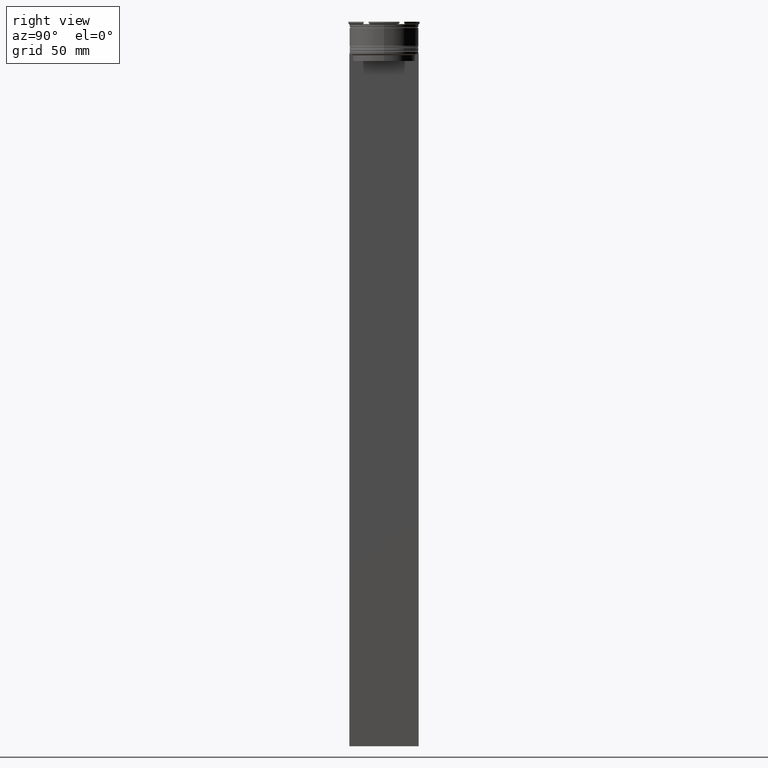
[diagram: clean part render]
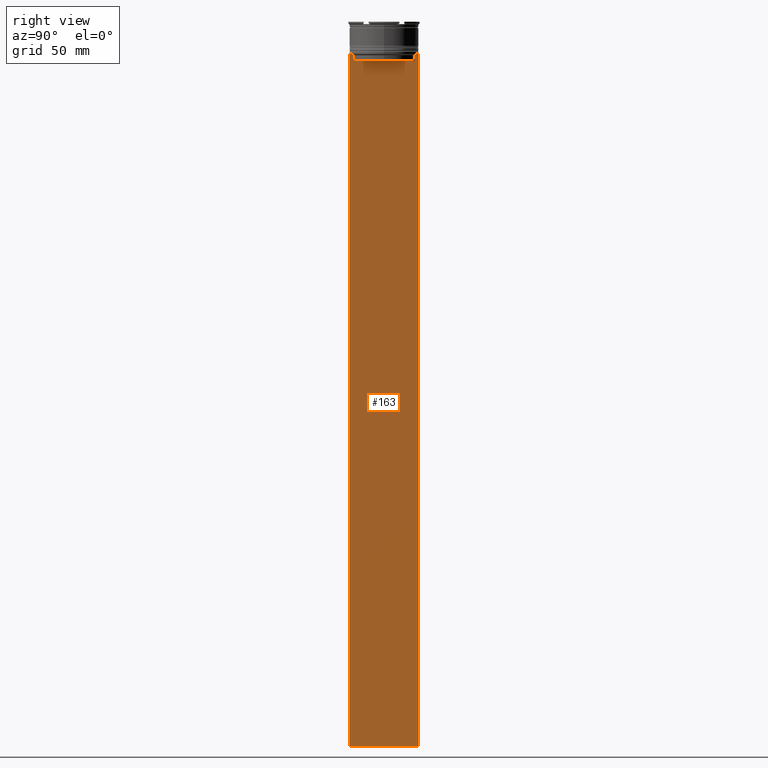
[diagram: same view with one face highlighted and labeled with its STEP entity id]
A machine part, right view. The second image highlights one B-rep face of the part: STEP entity #163.
In plain terms, the highlighted planar face has unit normal (-1, 0, 0).
Its self-contained STEP definition (entity closure, byte-faithful):
#25 = VECTOR ( 'NONE', #2640, 1000.000000000000000 ) ;
#26 = B_SPLINE_CURVE_WITH_KNOTS ( 'NONE', 3,
 ( #962, #2764, #1425, #1854 ),
 .UNSPECIFIED., .F., .F.,
 ( 4, 4 ),
 ( 0.06160226316123722928, 0.06231007364084064498 ),
 .UNSPECIFIED. ) ;
#78 = CARTESIAN_POINT ( 'NONE',  ( 0.5000000000000001110, -13.39066839257847263, 0.000000000000000000 ) ) ;
#111 = CARTESIAN_POINT ( 'NONE',  ( 0.5000000000000001110, 13.39066839257847263, 0.000000000000000000 ) ) ;
#155 = CARTESIAN_POINT ( 'NONE',  ( 0.5000000000000001110, 13.40000000000000391, -17.00000000000000000 ) ) ;
#163 = ADVANCED_FACE ( 'NONE', ( #940 ), #303, .F. ) ;
#187 = VERTEX_POINT ( 'NONE', #1148 ) ;
#205 = CARTESIAN_POINT ( 'NONE',  ( 0.5000000000000001110, -15.00000000000000355, 16.01666203960726165 ) ) ;
#220 = CARTESIAN_POINT ( 'NONE',  ( 0.5000000000000001110, 13.39066839257847086, -17.00000000000000000 ) ) ;
#222 = ORIENTED_EDGE ( 'NONE', *, *, #1873, .T. ) ;
#236 = VECTOR ( 'NONE', #1078, 1000.000000000000000 ) ;
#244 = DIRECTION ( 'NONE',  ( -1.000000000000000000, 0.000000000000000000, 0.000000000000000000 ) ) ;
#247 = VERTEX_POINT ( 'NONE', #1677 ) ;
#269 = VERTEX_POINT ( 'NONE', #2328 ) ;
#277 = EDGE_CURVE ( 'NONE', #2229, #2042, #996, .T. ) ;
#301 = CARTESIAN_POINT ( 'NONE',  ( 0.5000000000000001110, 13.39066839257847263, -14.49999999999999822 ) ) ;
#303 = PLANE ( 'NONE',  #509 ) ;
#336 = CARTESIAN_POINT ( 'NONE',  ( 0.5000000000000001110, -15.00000000000000355, -14.00000000000000178 ) ) ;
#394 = CARTESIAN_POINT ( 'NONE',  ( 0.5000000000000001110, 14.99999999999999645, -14.00000000000000178 ) ) ;
#395 = ORIENTED_EDGE ( 'NONE', *, *, #2115, .T. ) ;
#396 = CARTESIAN_POINT ( 'NONE',  ( 0.5000000000000001110, -13.89100428334828230, -14.00000000000000178 ) ) ;
#429 = ORIENTED_EDGE ( 'NONE', *, *, #1667, .T. ) ;
#509 = AXIS2_PLACEMENT_3D ( 'NONE', #1182, #244, #2699 ) ;
#554 = CARTESIAN_POINT ( 'NONE',  ( 0.5000000000000001110, 14.99999999999999645, -314.0000000000000000 ) ) ;
#555 = EDGE_CURVE ( 'NONE', #269, #887, #2585, .T. ) ;
#584 = CARTESIAN_POINT ( 'NONE',  ( 0.5000000000000001110, -13.39066839257847263, -14.49999999999999822 ) ) ;
#600 = LINE ( 'NONE', #629, #2341 ) ;
#627 = LINE ( 'NONE', #336, #2529 ) ;
#629 = CARTESIAN_POINT ( 'NONE',  ( 0.5000000000000001110, 14.99999999999999645, 16.01666203960726165 ) ) ;
#779 = LINE ( 'NONE', #111, #2526 ) ;
#805 = CARTESIAN_POINT ( 'NONE',  ( 0.5000000000000001110, 13.89100428334828230, -14.00000000000000178 ) ) ;
#845 = VERTEX_POINT ( 'NONE', #220 ) ;
#887 = VERTEX_POINT ( 'NONE', #1117 ) ;
#940 = FACE_OUTER_BOUND ( 'NONE', #2312, .T. ) ;
#962 = CARTESIAN_POINT ( 'NONE',  ( 0.5000000000000001110, -13.39066839257847263, -14.49999999999999822 ) ) ;
#982 = CARTESIAN_POINT ( 'NONE',  ( 0.5000000000000001110, 13.89100428334828230, -14.00000000000000178 ) ) ;
#995 = CARTESIAN_POINT ( 'NONE',  ( 0.5000000000000001110, 13.55744911232272543, -14.33333542444994002 ) ) ;
#996 = LINE ( 'NONE', #2137, #1050 ) ;
#1001 = ORIENTED_EDGE ( 'NONE', *, *, #2479, .T. ) ;
#1020 = CARTESIAN_POINT ( 'NONE',  ( 0.5000000000000001110, -15.00000000000000355, -14.00000000000000178 ) ) ;
#1050 = VECTOR ( 'NONE', #2352, 1000.000000000000000 ) ;
#1078 = DIRECTION ( 'NONE',  ( 0.000000000000000000, 0.000000000000000000, -1.000000000000000000 ) ) ;
#1117 = CARTESIAN_POINT ( 'NONE',  ( 0.5000000000000001110, -15.00000000000000355, -14.00000000000000178 ) ) ;
#1148 = CARTESIAN_POINT ( 'NONE',  ( 0.5000000000000001110, -15.00000000000000355, -314.0000000000000000 ) ) ;
#1182 = CARTESIAN_POINT ( 'NONE',  ( 0.5000000000000001110, -15.00000000000000355, 16.01666203960726165 ) ) ;
#1209 = CARTESIAN_POINT ( 'NONE',  ( 0.5000000000000001110, -15.00000000000000355, -14.00000000000000178 ) ) ;
#1228 = DIRECTION ( 'NONE',  ( 0.000000000000000000, 0.000000000000000000, -1.000000000000000000 ) ) ;
#1266 = LINE ( 'NONE', #1209, #2019 ) ;
#1268 = LINE ( 'NONE', #155, #2567 ) ;
#1287 = DIRECTION ( 'NONE',  ( 0.000000000000000000, -1.000000000000000000, 0.000000000000000000 ) ) ;
#1294 = EDGE_CURVE ( 'NONE', #187, #2064, #1989, .T. ) ;
#1333 = EDGE_CURVE ( 'NONE', #1362, #2229, #1266, .T. ) ;
#1362 = VERTEX_POINT ( 'NONE', #394 ) ;
#1425 = CARTESIAN_POINT ( 'NONE',  ( 0.5000000000000001110, -13.72422766745777167, -14.16666868242427135 ) ) ;
#1519 = VECTOR ( 'NONE', #2791, 1000.000000000000000 ) ;
#1551 = CARTESIAN_POINT ( 'NONE',  ( 0.5000000000000001110, 14.89160837518903513, -14.00000000000000178 ) ) ;
#1597 = EDGE_CURVE ( 'NONE', #1362, #2064, #600, .T. ) ;
#1664 = DIRECTION ( 'NONE',  ( 0.000000000000000000, 0.000000000000000000, -1.000000000000000000 ) ) ;
#1667 = EDGE_CURVE ( 'NONE', #845, #247, #1268, .T. ) ;
#1677 = CARTESIAN_POINT ( 'NONE',  ( 0.5000000000000001110, -13.39066839257847086, -17.00000000000000000 ) ) ;
#1756 = CARTESIAN_POINT ( 'NONE',  ( 0.5000000000000001110, -15.00000000000000355, -314.0000000000000000 ) ) ;
#1818 = DIRECTION ( 'NONE',  ( -0.000000000000000000, -0.000000000000000000, 1.000000000000000000 ) ) ;
#1821 = EDGE_CURVE ( 'NONE', #247, #2594, #2086, .T. ) ;
#1826 = ORIENTED_EDGE ( 'NONE', *, *, #277, .T. ) ;
#1827 = ORIENTED_EDGE ( 'NONE', *, *, #1294, .T. ) ;
#1844 = ORIENTED_EDGE ( 'NONE', *, *, #1333, .T. ) ;
#1854 = CARTESIAN_POINT ( 'NONE',  ( 0.5000000000000001110, -13.89100428334828230, -14.00000000000000178 ) ) ;
#1873 = EDGE_CURVE ( 'NONE', #2042, #2703, #2500, .T. ) ;
#1946 = LINE ( 'NONE', #205, #236 ) ;
#1984 = DIRECTION ( 'NONE',  ( 0.000000000000000000, -1.000000000000000000, 0.000000000000000000 ) ) ;
#1989 = LINE ( 'NONE', #1756, #25 ) ;
#2019 = VECTOR ( 'NONE', #1984, 1000.000000000000000 ) ;
#2020 = VECTOR ( 'NONE', #1818, 1000.000000000000000 ) ;
#2042 = VERTEX_POINT ( 'NONE', #982 ) ;
#2064 = VERTEX_POINT ( 'NONE', #554 ) ;
#2086 = LINE ( 'NONE', #78, #2020 ) ;
#2087 = VERTEX_POINT ( 'NONE', #396 ) ;
#2115 = EDGE_CURVE ( 'NONE', #2087, #269, #627, .T. ) ;
#2137 = CARTESIAN_POINT ( 'NONE',  ( 0.5000000000000001110, -15.00000000000000355, -14.00000000000000178 ) ) ;
#2153 = DIRECTION ( 'NONE',  ( 0.000000000000000000, -1.000000000000000000, 0.000000000000000000 ) ) ;
#2171 = ORIENTED_EDGE ( 'NONE', *, *, #555, .T. ) ;
#2229 = VERTEX_POINT ( 'NONE', #1551 ) ;
#2255 = ORIENTED_EDGE ( 'NONE', *, *, #2306, .T. ) ;
#2306 = EDGE_CURVE ( 'NONE', #2594, #2087, #26, .T. ) ;
#2312 = EDGE_LOOP ( 'NONE', ( #1826, #222, #2702, #429, #2490, #2255, #395, #2171, #1001, #1827, #2707, #1844 ) ) ;
#2328 = CARTESIAN_POINT ( 'NONE',  ( 0.5000000000000001110, -14.89160837518903513, -14.00000000000000178 ) ) ;
#2341 = VECTOR ( 'NONE', #1228, 1000.000000000000000 ) ;
#2352 = DIRECTION ( 'NONE',  ( 0.000000000000000000, -1.000000000000000000, 0.000000000000000000 ) ) ;
#2362 = CARTESIAN_POINT ( 'NONE',  ( 0.5000000000000001110, 13.39066839257847263, -14.49999999999999822 ) ) ;
#2479 = EDGE_CURVE ( 'NONE', #887, #187, #1946, .T. ) ;
#2490 = ORIENTED_EDGE ( 'NONE', *, *, #1821, .T. ) ;
#2500 = B_SPLINE_CURVE_WITH_KNOTS ( 'NONE', 3,
 ( #805, #2800, #995, #2362 ),
 .UNSPECIFIED., .F., .F.,
 ( 4, 4 ),
 ( 0.02359665025569774102, 0.02430399458637444096 ),
 .UNSPECIFIED. ) ;
#2526 = VECTOR ( 'NONE', #1664, 1000.000000000000000 ) ;
#2529 = VECTOR ( 'NONE', #1287, 1000.000000000000000 ) ;
#2548 = EDGE_CURVE ( 'NONE', #2703, #845, #779, .T. ) ;
#2567 = VECTOR ( 'NONE', #2153, 1000.000000000000000 ) ;
#2585 = LINE ( 'NONE', #1020, #1519 ) ;
#2594 = VERTEX_POINT ( 'NONE', #584 ) ;
#2640 = DIRECTION ( 'NONE',  ( 0.000000000000000000, 1.000000000000000000, 0.000000000000000000 ) ) ;
#2699 = DIRECTION ( 'NONE',  ( 0.000000000000000000, 0.000000000000000000, 1.000000000000000000 ) ) ;
#2702 = ORIENTED_EDGE ( 'NONE', *, *, #2548, .T. ) ;
#2703 = VERTEX_POINT ( 'NONE', #301 ) ;
#2707 = ORIENTED_EDGE ( 'NONE', *, *, #1597, .F. ) ;
#2764 = CARTESIAN_POINT ( 'NONE',  ( 0.5000000000000001110, -13.55744911241550099, -14.33333542435722663 ) ) ;
#2791 = DIRECTION ( 'NONE',  ( 0.000000000000000000, -1.000000000000000000, 0.000000000000000000 ) ) ;
#2800 = CARTESIAN_POINT ( 'NONE',  ( 0.5000000000000001110, 13.72422766736833744, -14.16666868251365052 ) ) ;